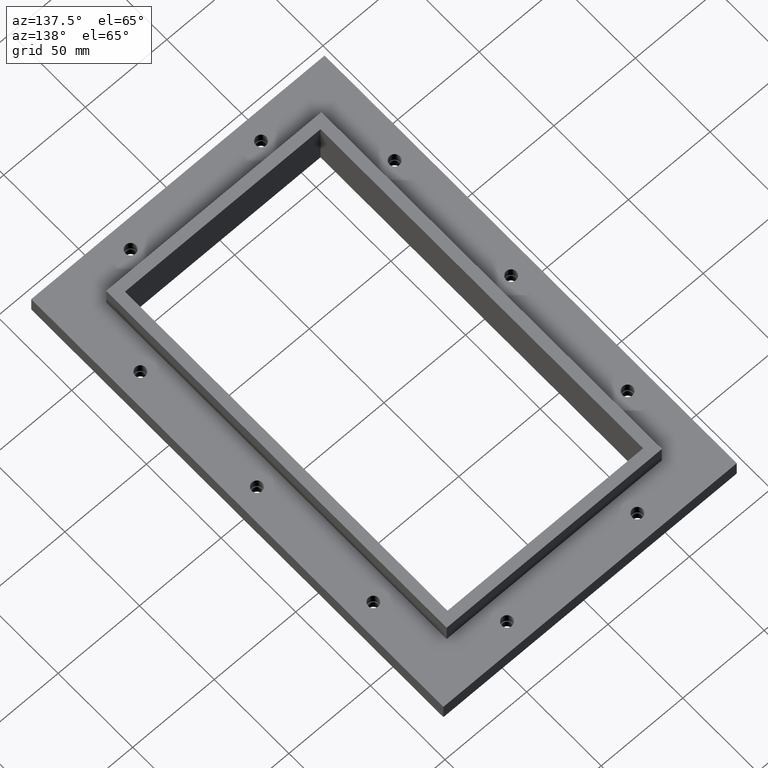
[diagram: clean part render]
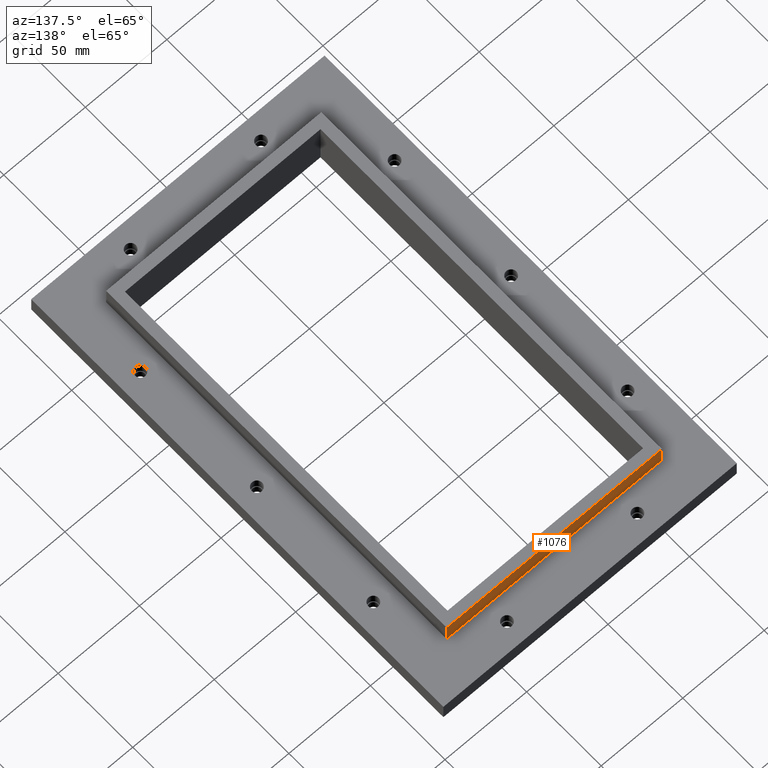
[diagram: same view with one face highlighted and labeled with its STEP entity id]
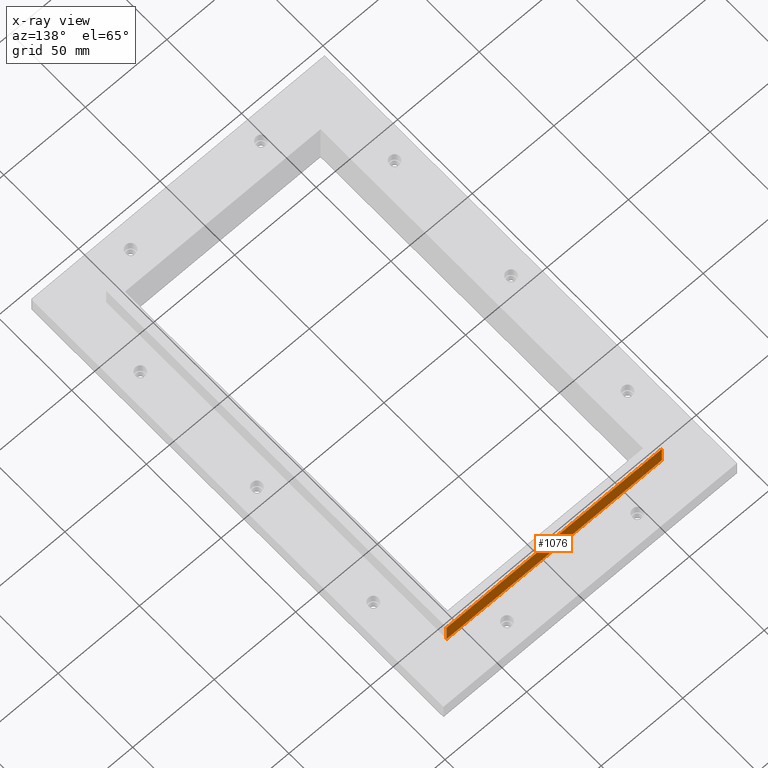
[diagram: x-ray of the same camera — body ghosted, the highlighted face saturated]
A machine part, auxiliary view. The second image highlights one B-rep face of the part: STEP entity #1076.
The next image is the same camera in x-ray: the body ghosted, the highlighted face saturated — about 0% of this face is hidden behind the body in this view.
In plain terms, the highlighted planar face has unit normal (-0, 1, 0).
Its self-contained STEP definition (entity closure, byte-faithful):
#90=PLANE('',#1171);
#130=FACE_OUTER_BOUND('',#184,.T.);
#184=EDGE_LOOP('',(#803,#804,#805,#806));
#293=LINE('',#1633,#389);
#294=LINE('',#1635,#390);
#295=LINE('',#1637,#391);
#296=LINE('',#1638,#392);
#389=VECTOR('',#1332,10.);
#390=VECTOR('',#1333,10.);
#391=VECTOR('',#1334,10.);
#392=VECTOR('',#1335,10.);
#543=VERTEX_POINT('',#1631);
#544=VERTEX_POINT('',#1632);
#545=VERTEX_POINT('',#1634);
#546=VERTEX_POINT('',#1636);
#649=EDGE_CURVE('',#543,#544,#293,.T.);
#650=EDGE_CURVE('',#544,#545,#294,.T.);
#651=EDGE_CURVE('',#546,#545,#295,.T.);
#652=EDGE_CURVE('',#543,#546,#296,.T.);
#803=ORIENTED_EDGE('',*,*,#649,.T.);
#804=ORIENTED_EDGE('',*,*,#650,.T.);
#805=ORIENTED_EDGE('',*,*,#651,.F.);
#806=ORIENTED_EDGE('',*,*,#652,.F.);
#1076=ADVANCED_FACE('',(#130),#90,.T.);
#1171=AXIS2_PLACEMENT_3D('',#1630,#1330,#1331);
#1330=DIRECTION('center_axis',(-1.48029736616688E-16,1.,0.));
#1331=DIRECTION('ref_axis',(0.,0.,-1.));
#1332=DIRECTION('',(0.,0.,-1.));
#1333=DIRECTION('',(-1.,-1.54032548624732E-16,0.));
#1334=DIRECTION('',(0.,0.,-1.));
#1335=DIRECTION('',(-1.,-1.54032548624732E-16,0.));
#1630=CARTESIAN_POINT('Origin',(65.9999999999999,114.,15.));
#1631=CARTESIAN_POINT('',(65.9999999999999,114.,15.));
#1632=CARTESIAN_POINT('',(65.9999999999999,114.,3.));
#1633=CARTESIAN_POINT('',(65.9999999999999,114.,7.5));
#1634=CARTESIAN_POINT('',(-65.9999999999999,114.,3.));
#1635=CARTESIAN_POINT('',(65.9999999999999,114.,3.));
#1636=CARTESIAN_POINT('',(-65.9999999999999,114.,15.));
#1637=CARTESIAN_POINT('',(-65.9999999999999,114.,7.5));
#1638=CARTESIAN_POINT('',(65.9999999999999,114.,15.));